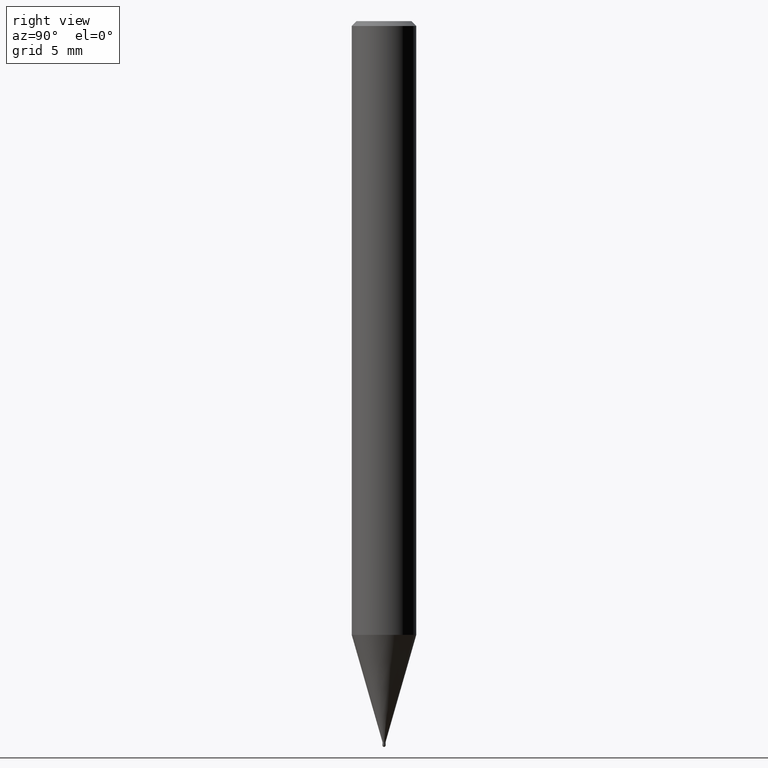
[diagram: clean part render]
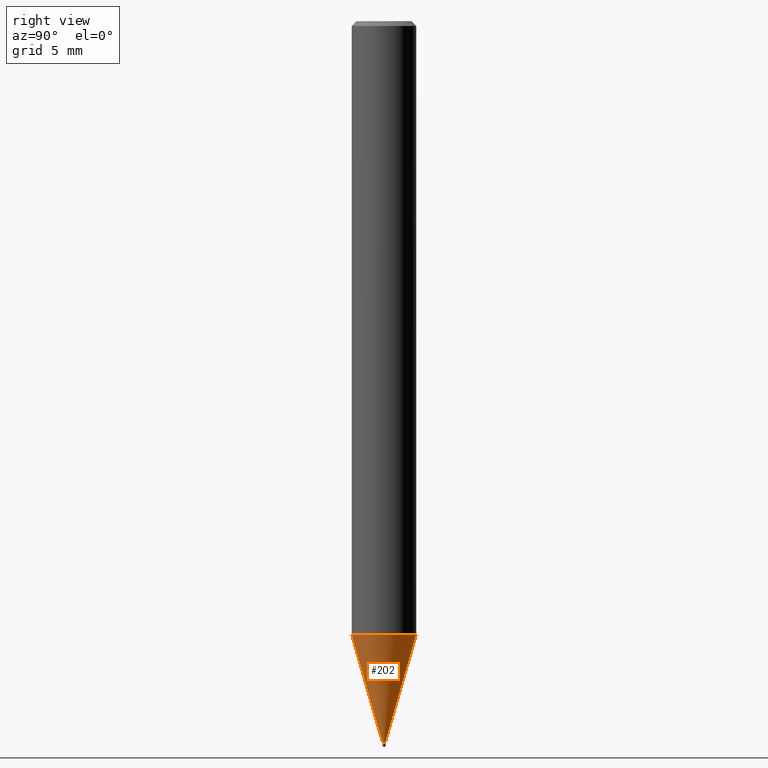
[diagram: same view with one face highlighted and labeled with its STEP entity id]
A machine part, right view. The second image highlights one B-rep face of the part: STEP entity #202.
In plain terms, the highlighted conical surface has half-angle 15.999 deg.
Its self-contained STEP definition (entity closure, byte-faithful):
#106=EDGE_CURVE('',#142,#124,#247,.T.);
#118=EDGE_CURVE('',#142,#208,#261,.T.);
#124=VERTEX_POINT('',#267);
#142=VERTEX_POINT('',#287);
#170=EDGE_CURVE('',#208,#186,#320,.T.);
#184=EDGE_CURVE('',#186,#124,#335,.T.);
#186=VERTEX_POINT('',#337);
#202=ADVANCED_FACE('',(#355),#356,.T.);
#208=VERTEX_POINT('',#364);
#247=CIRCLE('',#403,1.99995);
#261=LINE('',#421,#422);
#267=CARTESIAN_POINT('',(2.44915147732706E-016,-1.99995,-38.056));
#287=CARTESIAN_POINT('',(0.0,1.99995,-38.056));
#320=CIRCLE('',#494,0.09495);
#335=LINE('',#515,#516);
#337=CARTESIAN_POINT('',(1.16276373295435E-017,-0.09495,-44.7));
#355=FACE_OUTER_BOUND('',#540,.T.);
#356=CONICAL_SURFACE('',#541,1.04745,0.279233718115795);
#364=CARTESIAN_POINT('',(0.0,0.09495,-44.7));
#403=AXIS2_PLACEMENT_3D('',#569,#570,#571);
#421=CARTESIAN_POINT('',(-1.28271392531125E-016,1.04745,-41.378));
#422=VECTOR('',#592,1.0);
#494=AXIS2_PLACEMENT_3D('',#668,#669,#670);
#515=CARTESIAN_POINT('',(1.28271392531125E-016,-1.04745,-41.378));
#516=VECTOR('',#682,1.0);
#540=EDGE_LOOP('',(#705,#706,#707,#708));
#541=AXIS2_PLACEMENT_3D('',#709,#710,#711);
#569=CARTESIAN_POINT('',(0.0,0.0,-38.056));
#570=DIRECTION('',(0.0,0.0,-1.0));
#571=DIRECTION('',(0.0,1.0,0.0));
#592=DIRECTION('',(3.3752493554022E-017,-0.275619128127744,-0.961266922457078));
#668=CARTESIAN_POINT('',(0.0,0.0,-44.7));
#669=DIRECTION('',(0.0,0.0,-1.0));
#670=DIRECTION('',(0.0,1.0,0.0));
#682=DIRECTION('',(3.3752493554022E-017,-0.275619128127744,0.961266922457078));
#705=ORIENTED_EDGE('',*,*,#118,.F.);
#706=ORIENTED_EDGE('',*,*,#106,.T.);
#707=ORIENTED_EDGE('',*,*,#184,.F.);
#708=ORIENTED_EDGE('',*,*,#170,.F.);
#709=CARTESIAN_POINT('',(0.0,0.0,-41.378));
#710=DIRECTION('',(-0.0,-0.0,1.0));
#711=DIRECTION('',(0.0,1.0,0.0));